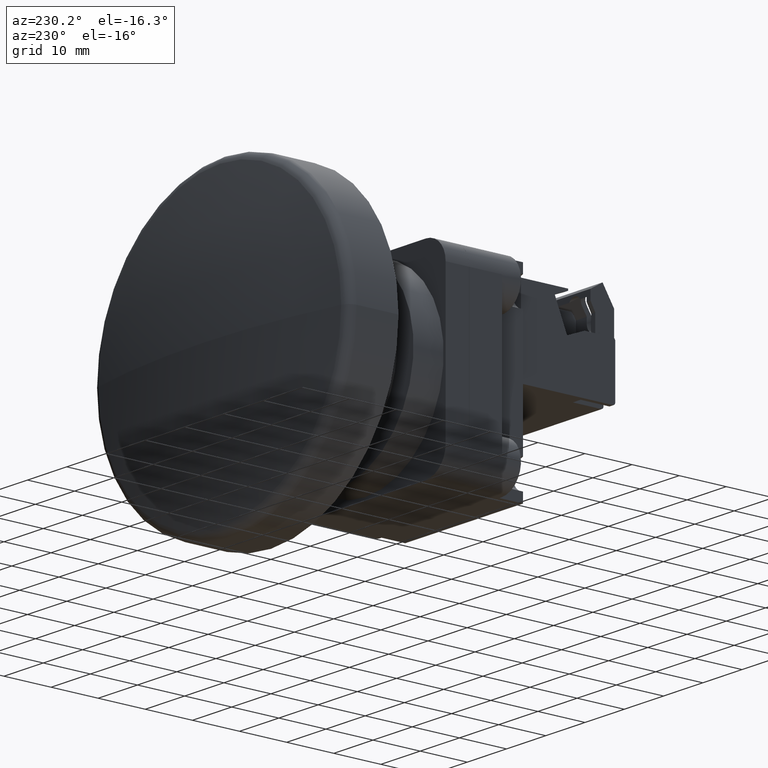
[diagram: clean part render]
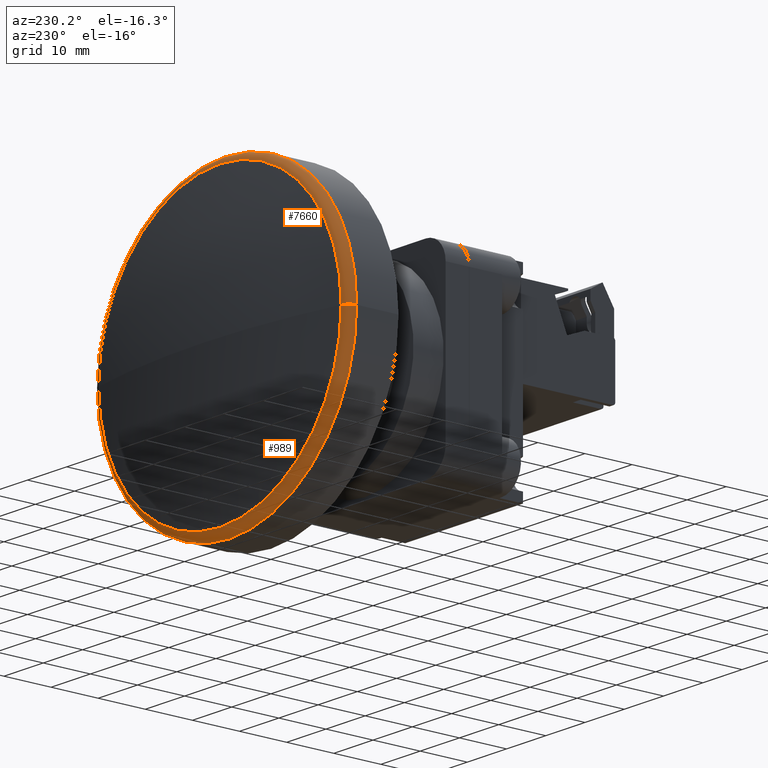
[diagram: same view with one multi-face feature highlighted, each face labeled with its STEP entity id]
A machine part, auxiliary view. The highlighted faces form ONE feature: a constant-radius fillet chain: 2 tangent blend faces with common blend radius 2 mm. The faces share edges in the B-rep.
Their STEP definitions:
[1] entity #7660 (Torus):
#101 = DIRECTION ( 'NONE',  ( -9.376883653928687400E-017, -1.000000000000000000, -0.0000000000000000000 ) ) ;
#142 = CARTESIAN_POINT ( 'NONE',  ( 3.228144117861222800E-014, 30.83867034917326000, 0.0000000000000000000 ) ) ;
#669 = VERTEX_POINT ( 'NONE', #7111 ) ;
#748 = DIRECTION ( 'NONE',  ( 1.000000000000000000, -1.122619210578668100E-016, 0.0000000000000000000 ) ) ;
#769 = CIRCLE ( 'NONE', #7582, 30.90493124703651500 ) ;
#1185 = VERTEX_POINT ( 'NONE', #4662 ) ;
#1267 = CARTESIAN_POINT ( 'NONE',  ( 30.50000000000001100, 28.88009160805165700, 0.0000000000000000000 ) ) ;
#1298 = DIRECTION ( 'NONE',  ( 1.000000000000000000, -9.376883653928687400E-017, 0.0000000000000000000 ) ) ;
#1332 = EDGE_CURVE ( 'NONE', #4576, #1185, #769, .T. ) ;
#1400 = CARTESIAN_POINT ( 'NONE',  ( -30.50000000000000400, 28.88009160805166400, 3.735172737399428300E-015 ) ) ;
#1856 = AXIS2_PLACEMENT_3D ( 'NONE', #1267, #5407, #1871 ) ;
#1871 = DIRECTION ( 'NONE',  ( -1.000000000000000000, 0.0000000000000000000, 0.0000000000000000000 ) ) ;
#2001 = DIRECTION ( 'NONE',  ( 1.000000000000000000, 0.0000000000000000000, -1.224646799147355400E-016 ) ) ;
#2203 = EDGE_LOOP ( 'NONE', ( #6557, #6562, #5383, #5904 ) ) ;
#2468 = CIRCLE ( 'NONE', #3149, 1.999999999999998200 ) ;
#2628 = TOROIDAL_SURFACE ( 'NONE', #4663, 30.50000000000000700, 2.000000000000000000 ) ;
#2678 = CARTESIAN_POINT ( 'NONE',  ( -30.90493124703649700, 30.83867034917326000, 0.0000000000000000000 ) ) ;
#3149 = AXIS2_PLACEMENT_3D ( 'NONE', #1400, #5554, #2001 ) ;
#3256 = DIRECTION ( 'NONE',  ( -9.376883653928687400E-017, -1.000000000000000000, -0.0000000000000000000 ) ) ;
#3992 = EDGE_CURVE ( 'NONE', #669, #4850, #4970, .T. ) ;
#4286 = DIRECTION ( 'NONE',  ( 9.376883653928687400E-017, 1.000000000000000000, 0.0000000000000000000 ) ) ;
#4459 = EDGE_CURVE ( 'NONE', #4576, #4850, #2468, .T. ) ;
#4576 = VERTEX_POINT ( 'NONE', #2678 ) ;
#4662 = CARTESIAN_POINT ( 'NONE',  ( 30.90493124703655800, 30.83867034917326000, -3.784762512955230700E-015 ) ) ;
#4663 = AXIS2_PLACEMENT_3D ( 'NONE', #4839, #101, #1298 ) ;
#4765 = AXIS2_PLACEMENT_3D ( 'NONE', #6828, #3256, #7428 ) ;
#4839 = CARTESIAN_POINT ( 'NONE',  ( 4.677198156560051200E-015, 28.88009160805166100, 0.0000000000000000000 ) ) ;
#4850 = VERTEX_POINT ( 'NONE', #6076 ) ;
#4970 = CIRCLE ( 'NONE', #4765, 32.50000000000000700 ) ;
#5237 = CIRCLE ( 'NONE', #1856, 1.999999999999998200 ) ;
#5383 = ORIENTED_EDGE ( 'NONE', *, *, #3992, .F. ) ;
#5407 = DIRECTION ( 'NONE',  ( 0.0000000000000000000, 0.0000000000000000000, -1.000000000000000000 ) ) ;
#5554 = DIRECTION ( 'NONE',  ( 1.224646799147353200E-016, -1.148337055276090500E-032, 1.000000000000000000 ) ) ;
#5768 = FACE_OUTER_BOUND ( 'NONE', #2203, .T. ) ;
#5904 = ORIENTED_EDGE ( 'NONE', *, *, #6690, .F. ) ;
#6076 = CARTESIAN_POINT ( 'NONE',  ( -32.50000000000000000, 28.88009160805166400, 3.980102097228899400E-015 ) ) ;
#6557 = ORIENTED_EDGE ( 'NONE', *, *, #1332, .F. ) ;
#6562 = ORIENTED_EDGE ( 'NONE', *, *, #4459, .T. ) ;
#6690 = EDGE_CURVE ( 'NONE', #1185, #669, #5237, .T. ) ;
#6828 = CARTESIAN_POINT ( 'NONE',  ( 4.677198156560051200E-015, 28.88009160805166100, 0.0000000000000000000 ) ) ;
#7111 = CARTESIAN_POINT ( 'NONE',  ( 32.50000000000001400, 28.88009160805165700, 0.0000000000000000000 ) ) ;
#7428 = DIRECTION ( 'NONE',  ( 1.000000000000000000, -1.067522139062650300E-016, 0.0000000000000000000 ) ) ;
#7582 = AXIS2_PLACEMENT_3D ( 'NONE', #142, #4286, #748 ) ;
#7660 = ADVANCED_FACE ( 'NONE', ( #5768 ), #2628, .T. ) ;
[2] entity #989 (Torus):
#147 = AXIS2_PLACEMENT_3D ( 'NONE', #6870, #6248, #933 ) ;
#498 = CARTESIAN_POINT ( 'NONE',  ( 4.677198156560051200E-015, 28.88009160805166100, 0.0000000000000000000 ) ) ;
#669 = VERTEX_POINT ( 'NONE', #7111 ) ;
#933 = DIRECTION ( 'NONE',  ( 1.000000000000000000, -9.376883653928687400E-017, 0.0000000000000000000 ) ) ;
#951 = AXIS2_PLACEMENT_3D ( 'NONE', #3171, #7352, #3761 ) ;
#989 = ADVANCED_FACE ( 'NONE', ( #3545 ), #6530, .T. ) ;
#1101 = DIRECTION ( 'NONE',  ( 1.000000000000000000, -1.067522139062650300E-016, 0.0000000000000000000 ) ) ;
#1104 = ORIENTED_EDGE ( 'NONE', *, *, #6690, .T. ) ;
#1185 = VERTEX_POINT ( 'NONE', #4662 ) ;
#1267 = CARTESIAN_POINT ( 'NONE',  ( 30.50000000000001100, 28.88009160805165700, 0.0000000000000000000 ) ) ;
#1400 = CARTESIAN_POINT ( 'NONE',  ( -30.50000000000000400, 28.88009160805166400, 3.735172737399428300E-015 ) ) ;
#1739 = ORIENTED_EDGE ( 'NONE', *, *, #4459, .F. ) ;
#1856 = AXIS2_PLACEMENT_3D ( 'NONE', #1267, #5407, #1871 ) ;
#1871 = DIRECTION ( 'NONE',  ( -1.000000000000000000, 0.0000000000000000000, 0.0000000000000000000 ) ) ;
#2001 = DIRECTION ( 'NONE',  ( 1.000000000000000000, 0.0000000000000000000, -1.224646799147355400E-016 ) ) ;
#2379 = ORIENTED_EDGE ( 'NONE', *, *, #3334, .F. ) ;
#2468 = CIRCLE ( 'NONE', #3149, 1.999999999999998200 ) ;
#2678 = CARTESIAN_POINT ( 'NONE',  ( -30.90493124703649700, 30.83867034917326000, 0.0000000000000000000 ) ) ;
#3149 = AXIS2_PLACEMENT_3D ( 'NONE', #1400, #5554, #2001 ) ;
#3171 = CARTESIAN_POINT ( 'NONE',  ( 3.228144117861222800E-014, 30.83867034917326000, 0.0000000000000000000 ) ) ;
#3334 = EDGE_CURVE ( 'NONE', #4850, #669, #6871, .T. ) ;
#3545 = FACE_OUTER_BOUND ( 'NONE', #4321, .T. ) ;
#3761 = DIRECTION ( 'NONE',  ( 1.000000000000000000, -1.122619210578668100E-016, 0.0000000000000000000 ) ) ;
#3872 = CIRCLE ( 'NONE', #951, 30.90493124703651500 ) ;
#4321 = EDGE_LOOP ( 'NONE', ( #1739, #5107, #1104, #2379 ) ) ;
#4459 = EDGE_CURVE ( 'NONE', #4576, #4850, #2468, .T. ) ;
#4576 = VERTEX_POINT ( 'NONE', #2678 ) ;
#4631 = DIRECTION ( 'NONE',  ( -9.376883653928687400E-017, -1.000000000000000000, -0.0000000000000000000 ) ) ;
#4662 = CARTESIAN_POINT ( 'NONE',  ( 30.90493124703655800, 30.83867034917326000, -3.784762512955230700E-015 ) ) ;
#4850 = VERTEX_POINT ( 'NONE', #6076 ) ;
#5107 = ORIENTED_EDGE ( 'NONE', *, *, #6221, .F. ) ;
#5237 = CIRCLE ( 'NONE', #1856, 1.999999999999998200 ) ;
#5407 = DIRECTION ( 'NONE',  ( 0.0000000000000000000, 0.0000000000000000000, -1.000000000000000000 ) ) ;
#5554 = DIRECTION ( 'NONE',  ( 1.224646799147353200E-016, -1.148337055276090500E-032, 1.000000000000000000 ) ) ;
#6076 = CARTESIAN_POINT ( 'NONE',  ( -32.50000000000000000, 28.88009160805166400, 3.980102097228899400E-015 ) ) ;
#6221 = EDGE_CURVE ( 'NONE', #1185, #4576, #3872, .T. ) ;
#6248 = DIRECTION ( 'NONE',  ( -9.376883653928687400E-017, -1.000000000000000000, -0.0000000000000000000 ) ) ;
#6530 = TOROIDAL_SURFACE ( 'NONE', #147, 30.50000000000000700, 2.000000000000000000 ) ;
#6690 = EDGE_CURVE ( 'NONE', #1185, #669, #5237, .T. ) ;
#6870 = CARTESIAN_POINT ( 'NONE',  ( 4.677198156560051200E-015, 28.88009160805166100, 0.0000000000000000000 ) ) ;
#6871 = CIRCLE ( 'NONE', #7128, 32.50000000000000700 ) ;
#7111 = CARTESIAN_POINT ( 'NONE',  ( 32.50000000000001400, 28.88009160805165700, 0.0000000000000000000 ) ) ;
#7128 = AXIS2_PLACEMENT_3D ( 'NONE', #498, #4631, #1101 ) ;
#7352 = DIRECTION ( 'NONE',  ( 9.376883653928687400E-017, 1.000000000000000000, 0.0000000000000000000 ) ) ;